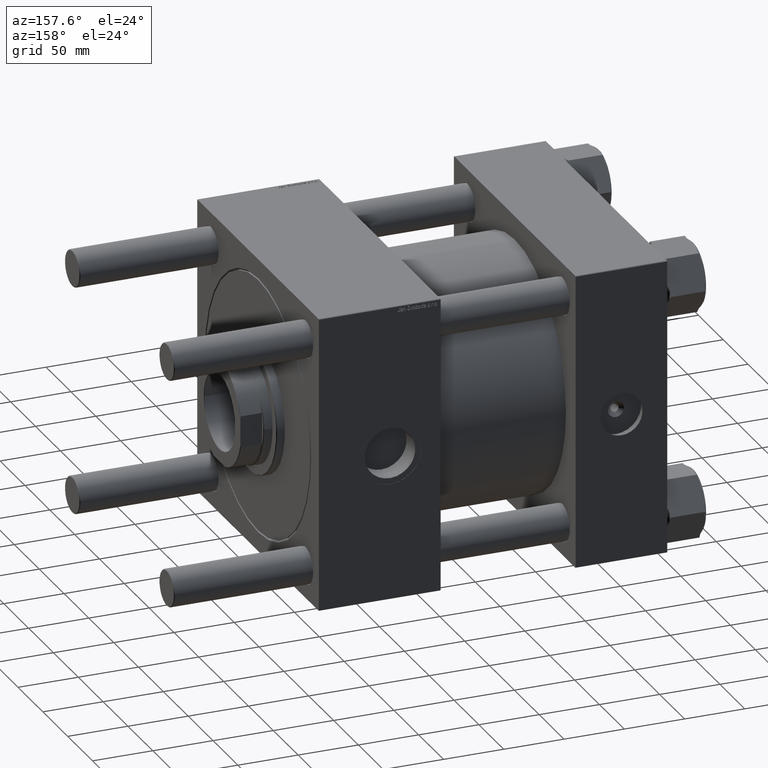
[diagram: clean part render]
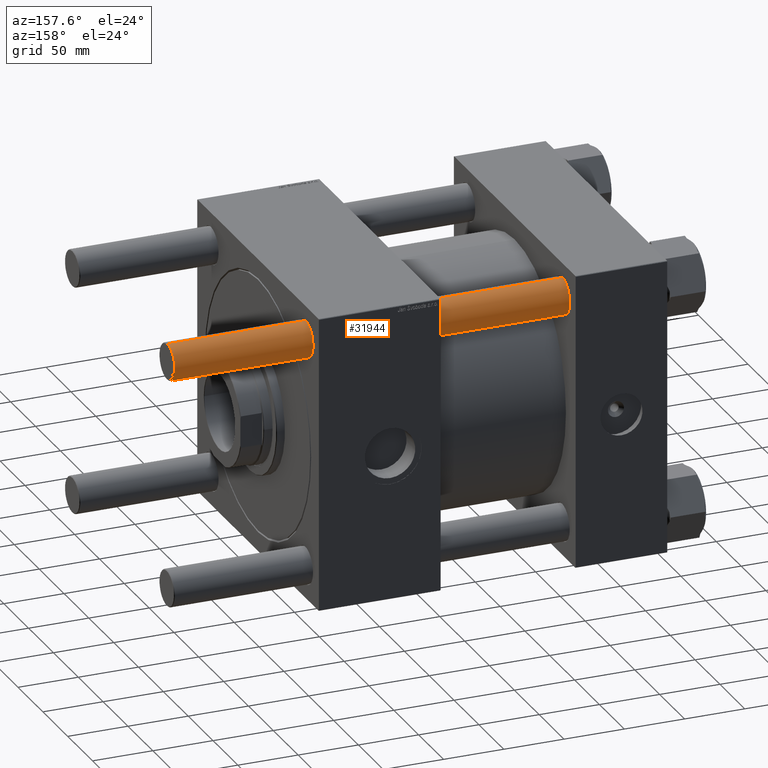
[diagram: same view with one face highlighted and labeled with its STEP entity id]
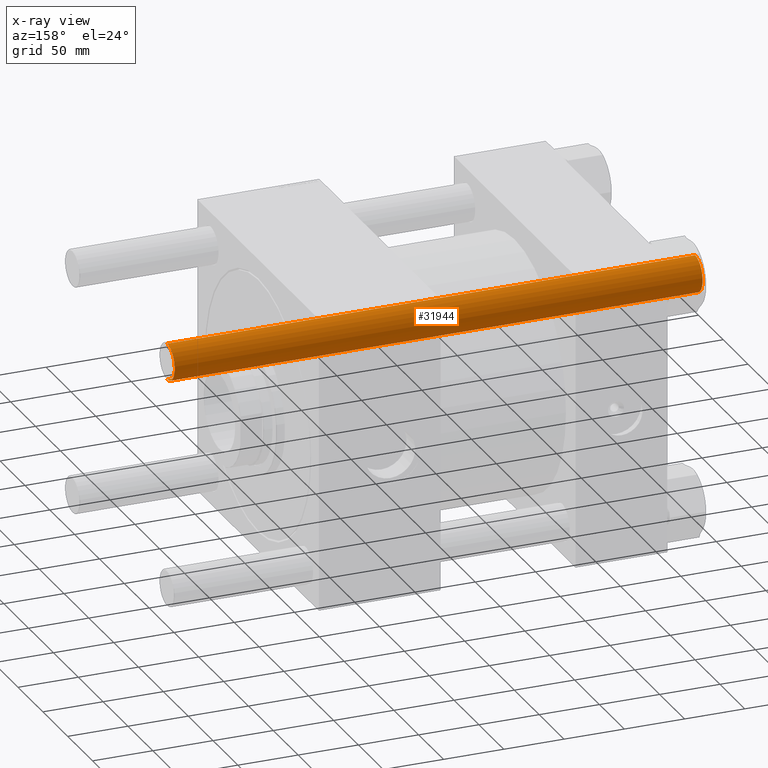
[diagram: x-ray of the same camera — body ghosted, the highlighted face saturated]
A machine part, auxiliary view. The second image highlights one B-rep face of the part: STEP entity #31944.
The next image is the same camera in x-ray: the body ghosted, the highlighted face saturated — about 0% of this face is hidden behind the body in this view.
In plain terms, the highlighted cylindrical surface (edge-blend (fillet) strip) has radius 15 mm, axis along (1, -0, -0).
Its self-contained STEP definition (entity closure, byte-faithful):
#751 = AXIS2_PLACEMENT_3D ( 'NONE', #9787, #13831, #9216 ) ;
#4486 = ORIENTED_EDGE ( 'NONE', *, *, #44074, .F. ) ;
#6917 = CARTESIAN_POINT ( 'NONE',  ( 15.00000000000000000, 1.836970198721029589E-15, 438.5000000000000000 ) ) ;
#9216 = DIRECTION ( 'NONE',  ( 1.000000000000000000, 0.000000000000000000, 0.000000000000000000 ) ) ;
#9787 = CARTESIAN_POINT ( 'NONE',  ( 0.000000000000000000, 0.000000000000000000, 0.5000000000000559552 ) ) ;
#10571 = ORIENTED_EDGE ( 'NONE', *, *, #28078, .T. ) ;
#10696 = DIRECTION ( 'NONE',  ( 1.000000000000000000, 0.000000000000000000, 0.000000000000000000 ) ) ;
#11080 = DIRECTION ( 'NONE',  ( -1.000000000000000000, 0.000000000000000000, 0.000000000000000000 ) ) ;
#11187 = DIRECTION ( 'NONE',  ( -0.000000000000000000, -0.000000000000000000, -1.000000000000000000 ) ) ;
#11215 = DIRECTION ( 'NONE',  ( -0.000000000000000000, -0.000000000000000000, -1.000000000000000000 ) ) ;
#13756 = VECTOR ( 'NONE', #11187, 1000.000000000000000 ) ;
#13831 = DIRECTION ( 'NONE',  ( -0.000000000000000000, -0.000000000000000000, 1.000000000000000000 ) ) ;
#13909 = AXIS2_PLACEMENT_3D ( 'NONE', #14763, #32683, #10696 ) ;
#14763 = CARTESIAN_POINT ( 'NONE',  ( 0.000000000000000000, 0.000000000000000000, 438.5000000000000000 ) ) ;
#15014 = EDGE_CURVE ( 'NONE', #43810, #48102, #31208, .T. ) ;
#18686 = EDGE_CURVE ( 'NONE', #26471, #43810, #50831, .T. ) ;
#23431 = VECTOR ( 'NONE', #11215, 1000.000000000000000 ) ;
#25081 = AXIS2_PLACEMENT_3D ( 'NONE', #33068, #50728, #11080 ) ;
#26471 = VERTEX_POINT ( 'NONE', #6917 ) ;
#28078 = EDGE_CURVE ( 'NONE', #46870, #26471, #36095, .T. ) ;
#31208 = CIRCLE ( 'NONE', #751, 15.00000000000000000 ) ;
#31944 = ADVANCED_FACE ( 'NONE', ( #55347 ), #55064, .T. ) ;
#32683 = DIRECTION ( 'NONE',  ( 0.000000000000000000, 0.000000000000000000, -1.000000000000000000 ) ) ;
#32783 = CARTESIAN_POINT ( 'NONE',  ( 15.00000000000000000, 1.836970198721029589E-15, 0.5000000000000559552 ) ) ;
#33068 = CARTESIAN_POINT ( 'NONE',  ( 0.000000000000000000, 0.000000000000000000, 439.0000000000000000 ) ) ;
#33229 = CARTESIAN_POINT ( 'NONE',  ( -15.00000000000000000, 0.000000000000000000, 438.5000000000000000 ) ) ;
#36095 = CIRCLE ( 'NONE', #13909, 15.00000000000000000 ) ;
#37352 = ORIENTED_EDGE ( 'NONE', *, *, #15014, .T. ) ;
#41508 = EDGE_LOOP ( 'NONE', ( #10571, #42166, #37352, #4486 ) ) ;
#41587 = CARTESIAN_POINT ( 'NONE',  ( 15.00000000000000000, 1.836970198721029589E-15, 439.0000000000000000 ) ) ;
#42166 = ORIENTED_EDGE ( 'NONE', *, *, #18686, .T. ) ;
#42170 = LINE ( 'NONE', #50860, #23431 ) ;
#43810 = VERTEX_POINT ( 'NONE', #32783 ) ;
#44074 = EDGE_CURVE ( 'NONE', #46870, #48102, #42170, .T. ) ;
#46870 = VERTEX_POINT ( 'NONE', #33229 ) ;
#48102 = VERTEX_POINT ( 'NONE', #49993 ) ;
#49993 = CARTESIAN_POINT ( 'NONE',  ( -15.00000000000000000, 0.000000000000000000, 0.5000000000000559552 ) ) ;
#50728 = DIRECTION ( 'NONE',  ( -0.000000000000000000, -0.000000000000000000, -1.000000000000000000 ) ) ;
#50831 = LINE ( 'NONE', #41587, #13756 ) ;
#50860 = CARTESIAN_POINT ( 'NONE',  ( -15.00000000000000000, 0.000000000000000000, 439.0000000000000000 ) ) ;
#55064 = CYLINDRICAL_SURFACE ( 'NONE', #25081, 15.00000000000000000 ) ;
#55347 = FACE_OUTER_BOUND ( 'NONE', #41508, .T. ) ;